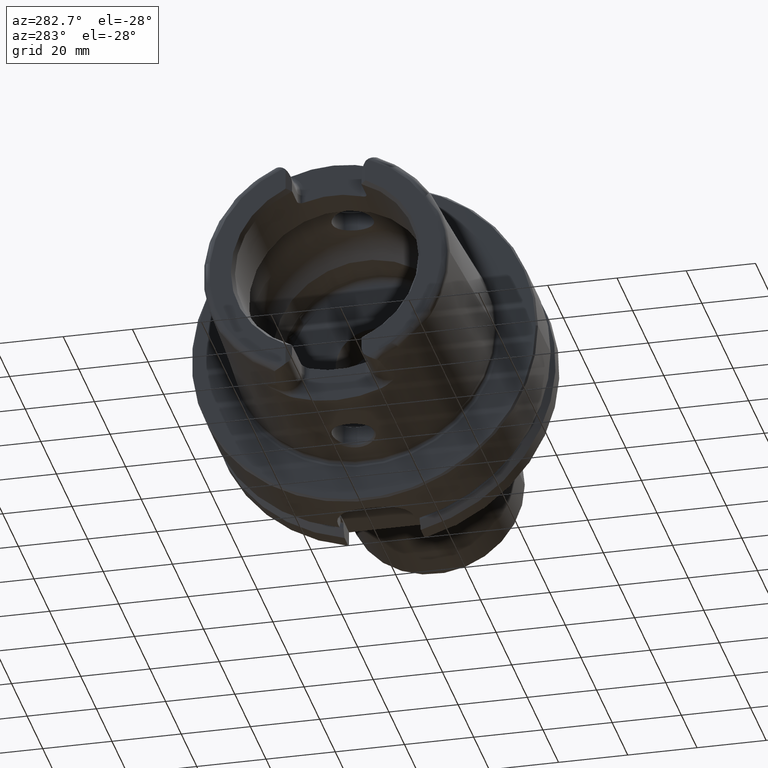
[diagram: clean part render]
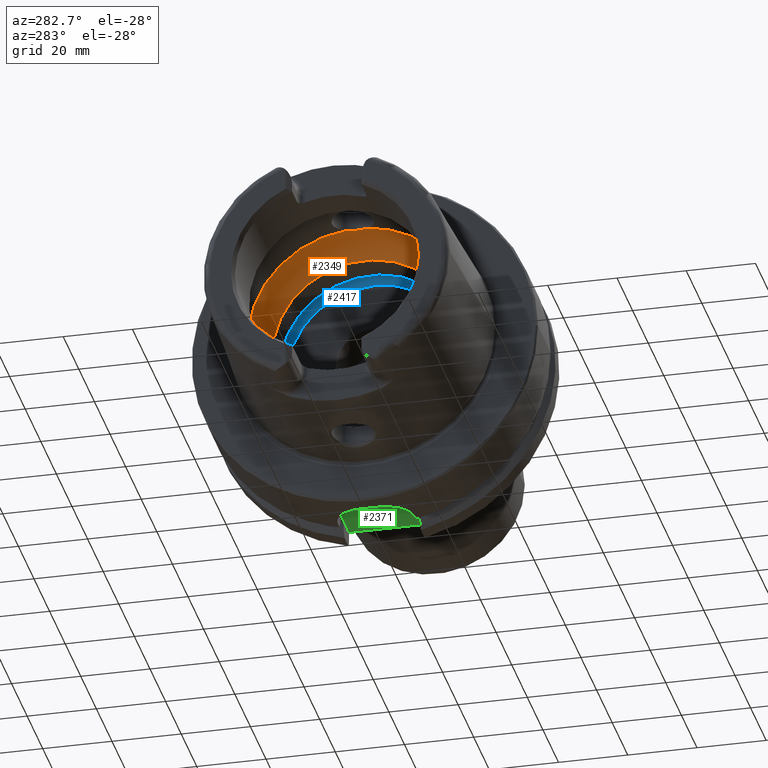
[diagram: same view with three faces highlighted in distinct colors, each labeled with its STEP entity id]
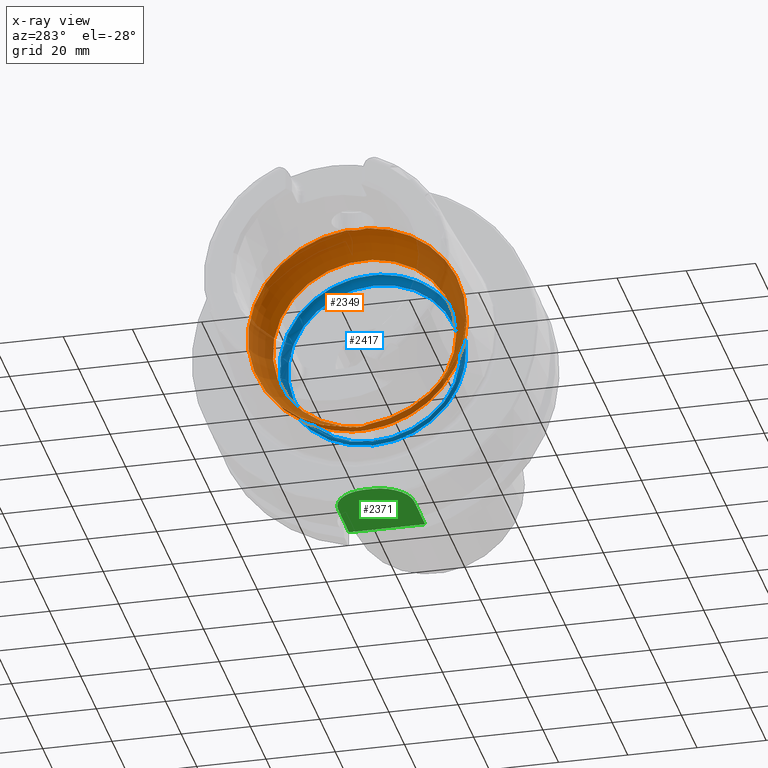
[diagram: x-ray of the same camera — body ghosted, the three highlighted faces saturated]
A machine part, auxiliary view with three faces highlighted in distinct colors.
The next image is the same camera in x-ray (body ghosted, the three faces saturated) — at least one of them is partly hidden behind the body in this view.
Their STEP definitions:

[orange] entity #2349 — the highlighted toroidal blend (fillet) surface has major radius 19.5 mm and minor (blend) radius 12 mm.
#34=TOROIDAL_SURFACE('',#2570,19.5,12.);
#155=CIRCLE('',#2565,31.5);
#158=CIRCLE('',#2568,31.5);
#159=CIRCLE('',#2569,31.5);
#160=CIRCLE('',#2571,26.5);
#161=CIRCLE('',#2572,26.5);
#162=CIRCLE('',#2573,12.);
#339=FACE_OUTER_BOUND('',#492,.T.);
#492=EDGE_LOOP('',(#1800,#1801,#1802,#1803,#1804,#1805,#1806,#1807,#1808,
#1809,#1810));
#628=B_SPLINE_CURVE_WITH_KNOTS('',3,(#4494,#4495,#4496,#4497,#4498,#4499,
#4500,#4501,#4502,#4503),.UNSPECIFIED.,.F.,.F.,(4,2,2,2,4),(-0.606113644645353,
-0.532141714710631,-0.407956541554012,-0.344441109025195,-0.303157612487306),
 .UNSPECIFIED.);
#630=B_SPLINE_CURVE_WITH_KNOTS('',3,(#4536,#4537,#4538,#4539,#4540,#4541,
#4542,#4543,#4544,#4545),.UNSPECIFIED.,.F.,.F.,(4,2,2,2,4),(-0.303157612487306,
-0.297161587155601,-0.247817233363509,-0.174446982686599,0.),
 .UNSPECIFIED.);
#633=B_SPLINE_CURVE_WITH_KNOTS('',3,(#4686,#4687,#4688,#4689,#4690,#4691,
#4692,#4693,#4694,#4695),.UNSPECIFIED.,.F.,.F.,(4,2,2,2,4),(-0.606113644645388,
-0.532141714710621,-0.407956541553997,-0.344441109025146,-0.303157612487227),
 .UNSPECIFIED.);
#635=B_SPLINE_CURVE_WITH_KNOTS('',3,(#4728,#4729,#4730,#4731,#4732,#4733,
#4734,#4735,#4736,#4737),.UNSPECIFIED.,.F.,.F.,(4,2,2,2,4),(-0.303157612487227,
-0.297161587155532,-0.247817233363497,-0.174446982686607,0.),
 .UNSPECIFIED.);
#1026=VERTEX_POINT('',#4491);
#1027=VERTEX_POINT('',#4493);
#1028=VERTEX_POINT('',#4504);
#1031=VERTEX_POINT('',#4684);
#1032=VERTEX_POINT('',#4685);
#1033=VERTEX_POINT('',#4696);
#1034=VERTEX_POINT('',#4740);
#1037=VERTEX_POINT('',#4750);
#1038=VERTEX_POINT('',#4751);
#1308=EDGE_CURVE('',#1027,#1026,#628,.T.);
#1310=EDGE_CURVE('',#1026,#1028,#630,.T.);
#1314=EDGE_CURVE('',#1031,#1032,#633,.T.);
#1316=EDGE_CURVE('',#1032,#1033,#635,.T.);
#1318=EDGE_CURVE('',#1034,#1031,#155,.T.);
#1322=EDGE_CURVE('',#1028,#1034,#158,.T.);
#1323=EDGE_CURVE('',#1033,#1027,#159,.T.);
#1324=EDGE_CURVE('',#1037,#1038,#160,.T.);
#1325=EDGE_CURVE('',#1038,#1037,#161,.T.);
#1326=EDGE_CURVE('',#1038,#1026,#162,.T.);
#1800=ORIENTED_EDGE('',*,*,#1324,.F.);
#1801=ORIENTED_EDGE('',*,*,#1325,.F.);
#1802=ORIENTED_EDGE('',*,*,#1326,.T.);
#1803=ORIENTED_EDGE('',*,*,#1310,.T.);
#1804=ORIENTED_EDGE('',*,*,#1322,.T.);
#1805=ORIENTED_EDGE('',*,*,#1318,.T.);
#1806=ORIENTED_EDGE('',*,*,#1314,.T.);
#1807=ORIENTED_EDGE('',*,*,#1316,.T.);
#1808=ORIENTED_EDGE('',*,*,#1323,.T.);
#1809=ORIENTED_EDGE('',*,*,#1308,.T.);
#1810=ORIENTED_EDGE('',*,*,#1326,.F.);
#2349=ADVANCED_FACE('',(#339),#34,.F.);
#2565=AXIS2_PLACEMENT_3D('',#4741,#3007,#3008);
#2568=AXIS2_PLACEMENT_3D('',#4747,#3014,#3015);
#2569=AXIS2_PLACEMENT_3D('',#4748,#3016,#3017);
#2570=AXIS2_PLACEMENT_3D('',#4749,#3018,#3019);
#2571=AXIS2_PLACEMENT_3D('',#4752,#3020,#3021);
#2572=AXIS2_PLACEMENT_3D('',#4753,#3022,#3023);
#2573=AXIS2_PLACEMENT_3D('',#4754,#3024,#3025);
#3007=DIRECTION('center_axis',(-1.,0.,0.));
#3008=DIRECTION('ref_axis',(0.,0.,1.));
#3014=DIRECTION('center_axis',(-1.,0.,0.));
#3015=DIRECTION('ref_axis',(0.,0.,1.));
#3016=DIRECTION('center_axis',(-1.,0.,0.));
#3017=DIRECTION('ref_axis',(0.,0.,1.));
#3018=DIRECTION('center_axis',(-1.,0.,0.));
#3019=DIRECTION('ref_axis',(0.,0.,1.));
#3020=DIRECTION('center_axis',(-1.,0.,0.));
#3021=DIRECTION('ref_axis',(0.,0.,1.));
#3022=DIRECTION('center_axis',(-1.,0.,0.));
#3023=DIRECTION('ref_axis',(0.,0.,1.));
#3024=DIRECTION('center_axis',(0.,1.,-1.22464679914735E-16));
#3025=DIRECTION('ref_axis',(0.,-1.22464679914735E-16,-1.));
#4491=CARTESIAN_POINT('',(-9.,8.53116613017712E-16,-31.4767398822284));
#4493=CARTESIAN_POINT('',(-9.74679434480896,2.89893607109041,-31.3663222207471));
#4494=CARTESIAN_POINT('Ctrl Pts',(-9.74679434480898,2.89893607109041,-31.3663222207471));
#4495=CARTESIAN_POINT('Ctrl Pts',(-9.62803941549252,2.68373847757038,-31.3862111979079));
#4496=CARTESIAN_POINT('Ctrl Pts',(-9.52250794022164,2.46123932380009,-31.4027818190648));
#4497=CARTESIAN_POINT('Ctrl Pts',(-9.27707880675082,1.84905941644996,-31.4398086116956));
#4498=CARTESIAN_POINT('Ctrl Pts',(-9.16318715371328,1.45014848778478,-31.4552463037839));
#4499=CARTESIAN_POINT('Ctrl Pts',(-9.05448554629564,0.83406948853474,-31.4697090180031));
#4500=CARTESIAN_POINT('Ctrl Pts',(-9.02875508102837,0.623753972628784,-31.4730355369691));
#4501=CARTESIAN_POINT('Ctrl Pts',(-9.00473516300901,0.275210595137741,-31.4761342948647));
#4502=CARTESIAN_POINT('Ctrl Pts',(-9.,0.13762179988616,-31.4767398822284));
#4503=CARTESIAN_POINT('Ctrl Pts',(-9.,9.71445146547012E-16,-31.4767398822284));
#4504=CARTESIAN_POINT('',(-9.74679434480896,-2.89893607109041,-31.3663222207471));
#4536=CARTESIAN_POINT('Ctrl Pts',(-9.,9.83483832277069E-16,-31.4767398822284));
#4537=CARTESIAN_POINT('Ctrl Pts',(-9.,-0.0199882245331354,-31.4767398822284));
#4538=CARTESIAN_POINT('Ctrl Pts',(-9.00009988237686,-0.0399771452902417,
-31.4767270717783));
#4539=CARTESIAN_POINT('Ctrl Pts',(-9.00194380057016,-0.224464346212316,
-31.4764905359115));
#4540=CARTESIAN_POINT('Ctrl Pts',(-9.01035297969853,-0.388827878343727,
-31.4754151841588));
#4541=CARTESIAN_POINT('Ctrl Pts',(-9.0480310904853,-0.796171644009328,-31.4705320701686));
#4542=CARTESIAN_POINT('Ctrl Pts',(-9.08543037238412,-1.03809779370842,-31.4656619259797));
#4543=CARTESIAN_POINT('Ctrl Pts',(-9.26119500081336,-1.84501079512327,-31.441850680052));
#4544=CARTESIAN_POINT('Ctrl Pts',(-9.4667592962906,-2.39148034786879,-31.4132222586341));
#4545=CARTESIAN_POINT('Ctrl Pts',(-9.74679434480898,-2.89893607109041,-31.3663222207471));
#4684=CARTESIAN_POINT('',(-9.74679434480896,-2.89893607109042,31.3663222207471));
#4685=CARTESIAN_POINT('',(-8.99999999999999,7.8372767397864E-16,31.4767398822284));
#4686=CARTESIAN_POINT('Ctrl Pts',(-9.74679434480898,-2.89893607109042,31.3663222207471));
#4687=CARTESIAN_POINT('Ctrl Pts',(-9.62803941549257,-2.6837384775705,31.3862111979079));
#4688=CARTESIAN_POINT('Ctrl Pts',(-9.52250794022172,-2.46123932380032,31.4027818190648));
#4689=CARTESIAN_POINT('Ctrl Pts',(-9.27707880675083,-1.84905941645004,31.4398086116956));
#4690=CARTESIAN_POINT('Ctrl Pts',(-9.16318715371328,-1.45014848778485,31.4552463037839));
#4691=CARTESIAN_POINT('Ctrl Pts',(-9.05448554629561,-0.834069488534672,
31.4697090180031));
#4692=CARTESIAN_POINT('Ctrl Pts',(-9.02875508102836,-0.623753972628598,
31.4730355369691));
#4693=CARTESIAN_POINT('Ctrl Pts',(-9.00473516300902,-0.275210595137865,
31.4761342948647));
#4694=CARTESIAN_POINT('Ctrl Pts',(-8.99999999999999,-0.137621799886392,
31.4767398822284));
#4695=CARTESIAN_POINT('Ctrl Pts',(-8.99999999999999,9.0205620750794E-16,
31.4767398822284));
#4696=CARTESIAN_POINT('',(-9.74679434480896,2.89893607109042,31.3663222207471));
#4728=CARTESIAN_POINT('Ctrl Pts',(-8.99999999999999,8.7920239009422E-16,
31.4767398822284));
#4729=CARTESIAN_POINT('Ctrl Pts',(-8.99999999999999,0.0199882245331231,
31.4767398822284));
#4730=CARTESIAN_POINT('Ctrl Pts',(-9.00009988237684,0.0399771452902225,
31.4767270717783));
#4731=CARTESIAN_POINT('Ctrl Pts',(-9.00194380057014,0.224464346212396,31.4764905359115));
#4732=CARTESIAN_POINT('Ctrl Pts',(-9.01035297969852,0.388827878343765,31.4754151841588));
#4733=CARTESIAN_POINT('Ctrl Pts',(-9.0480310904853,0.79617164400948,31.4705320701686));
#4734=CARTESIAN_POINT('Ctrl Pts',(-9.08543037238414,1.03809779370849,31.4656619259797));
#4735=CARTESIAN_POINT('Ctrl Pts',(-9.26119500081334,1.84501079512323,31.441850680052));
#4736=CARTESIAN_POINT('Ctrl Pts',(-9.46675929629059,2.39148034786878,31.4132222586341));
#4737=CARTESIAN_POINT('Ctrl Pts',(-9.74679434480898,2.89893607109043,31.3663222207471));
#4740=CARTESIAN_POINT('',(-9.74679434480896,-31.5,3.85763741731416E-15));
#4741=CARTESIAN_POINT('Origin',(-9.74679434480896,0.,0.));
#4747=CARTESIAN_POINT('Origin',(-9.74679434480896,0.,0.));
#4748=CARTESIAN_POINT('Origin',(-9.74679434480896,0.,0.));
#4749=CARTESIAN_POINT('Origin',(-9.74679434480896,0.,0.));
#4750=CARTESIAN_POINT('',(0.,-26.5,3.24531401774049E-15));
#4751=CARTESIAN_POINT('',(0.,-3.24531401774049E-15,-26.5));
#4752=CARTESIAN_POINT('Origin',(0.,0.,0.));
#4753=CARTESIAN_POINT('Origin',(0.,0.,0.));
#4754=CARTESIAN_POINT('Origin',(-9.74679434480896,-2.38806125833734E-15,
-19.5));

[blue] entity #2417 — the highlighted toroidal blend (fillet) surface has major radius 24.9 mm and minor (blend) radius 2 mm.
#52=TOROIDAL_SURFACE('',#2705,24.9,2.);
#226=CIRCLE('',#2704,24.9);
#227=CIRCLE('',#2706,2.);
#228=CIRCLE('',#2707,26.5);
#229=CIRCLE('',#2708,26.5);
#407=FACE_OUTER_BOUND('',#567,.T.);
#567=EDGE_LOOP('',(#2178,#2179,#2180,#2181,#2182));
#1146=VERTEX_POINT('',#5412);
#1147=VERTEX_POINT('',#5415);
#1148=VERTEX_POINT('',#5417);
#1497=EDGE_CURVE('',#1146,#1146,#226,.T.);
#1498=EDGE_CURVE('',#1146,#1147,#227,.T.);
#1499=EDGE_CURVE('',#1147,#1148,#228,.T.);
#1500=EDGE_CURVE('',#1148,#1147,#229,.T.);
#2178=ORIENTED_EDGE('',*,*,#1497,.F.);
#2179=ORIENTED_EDGE('',*,*,#1498,.T.);
#2180=ORIENTED_EDGE('',*,*,#1499,.T.);
#2181=ORIENTED_EDGE('',*,*,#1500,.T.);
#2182=ORIENTED_EDGE('',*,*,#1498,.F.);
#2417=ADVANCED_FACE('',(#407),#52,.F.);
#2704=AXIS2_PLACEMENT_3D('',#5413,#3352,#3353);
#2705=AXIS2_PLACEMENT_3D('',#5414,#3354,#3355);
#2706=AXIS2_PLACEMENT_3D('',#5416,#3356,#3357);
#2707=AXIS2_PLACEMENT_3D('',#5418,#3358,#3359);
#2708=AXIS2_PLACEMENT_3D('',#5419,#3360,#3361);
#3352=DIRECTION('center_axis',(-1.,0.,0.));
#3353=DIRECTION('ref_axis',(0.,0.,1.));
#3354=DIRECTION('center_axis',(-1.,0.,0.));
#3355=DIRECTION('ref_axis',(0.,0.,1.));
#3356=DIRECTION('center_axis',(0.,1.,-1.22464679914735E-16));
#3357=DIRECTION('ref_axis',(0.,-1.22464679914735E-16,-1.));
#3358=DIRECTION('center_axis',(-1.,0.,0.));
#3359=DIRECTION('ref_axis',(0.,0.,1.));
#3360=DIRECTION('center_axis',(-1.,0.,0.));
#3361=DIRECTION('ref_axis',(0.,0.,1.));
#5412=CARTESIAN_POINT('',(12.5,-3.04937052987691E-15,-24.9));
#5413=CARTESIAN_POINT('Origin',(12.5,0.,0.));
#5414=CARTESIAN_POINT('Origin',(10.5,0.,0.));
#5415=CARTESIAN_POINT('',(9.3,-3.24531401774049E-15,-26.5));
#5416=CARTESIAN_POINT('Origin',(10.5,-3.04937052987691E-15,-24.9));
#5417=CARTESIAN_POINT('',(9.3,-26.5,3.24531401774049E-15));
#5418=CARTESIAN_POINT('Origin',(9.3,0.,0.));
#5419=CARTESIAN_POINT('Origin',(9.3,0.,0.));

[green] entity #2371 — the highlighted planar face has unit normal (0, 0, 1).
#183=CIRCLE('',#2612,10.);
#184=CIRCLE('',#2615,10.);
#270=PLANE('',#2617);
#361=FACE_OUTER_BOUND('',#517,.T.);
#517=EDGE_LOOP('',(#1950,#1951,#1952,#1953,#1954,#1955));
#738=LINE('',#5075,#858);
#750=LINE('',#5171,#870);
#753=LINE('',#5178,#873);
#754=LINE('',#5180,#874);
#858=VECTOR('',#3125,10.);
#870=VECTOR('',#3143,10.);
#873=VECTOR('',#3152,10.);
#874=VECTOR('',#3155,10.);
#1091=VERTEX_POINT('',#5072);
#1092=VERTEX_POINT('',#5074);
#1100=VERTEX_POINT('',#5115);
#1101=VERTEX_POINT('',#5117);
#1111=VERTEX_POINT('',#5170);
#1112=VERTEX_POINT('',#5174);
#1394=EDGE_CURVE('',#1091,#1092,#738,.T.);
#1405=EDGE_CURVE('',#1100,#1101,#183,.T.);
#1416=EDGE_CURVE('',#1101,#1111,#750,.T.);
#1418=EDGE_CURVE('',#1092,#1112,#184,.T.);
#1420=EDGE_CURVE('',#1112,#1100,#753,.T.);
#1421=EDGE_CURVE('',#1111,#1091,#754,.T.);
#1950=ORIENTED_EDGE('',*,*,#1420,.F.);
#1951=ORIENTED_EDGE('',*,*,#1418,.F.);
#1952=ORIENTED_EDGE('',*,*,#1394,.F.);
#1953=ORIENTED_EDGE('',*,*,#1421,.F.);
#1954=ORIENTED_EDGE('',*,*,#1416,.F.);
#1955=ORIENTED_EDGE('',*,*,#1405,.F.);
#2371=ADVANCED_FACE('',(#361),#270,.F.);
#2612=AXIS2_PLACEMENT_3D('',#5118,#3134,#3135);
#2615=AXIS2_PLACEMENT_3D('',#5175,#3147,#3148);
#2617=AXIS2_PLACEMENT_3D('',#5179,#3153,#3154);
#3125=DIRECTION('',(-1.,-1.58603289232165E-16,0.));
#3134=DIRECTION('center_axis',(0.,0.,1.));
#3135=DIRECTION('ref_axis',(-1.,-2.4980018054066E-16,0.));
#3143=DIRECTION('',(1.,1.58603289232165E-16,0.));
#3147=DIRECTION('center_axis',(0.,0.,1.));
#3148=DIRECTION('ref_axis',(-2.22044604925031E-16,1.,0.));
#3152=DIRECTION('',(0.,-1.,0.));
#3153=DIRECTION('center_axis',(0.,0.,1.));
#3154=DIRECTION('ref_axis',(1.,0.,0.));
#3155=DIRECTION('',(0.,1.,0.));
#5072=CARTESIAN_POINT('',(29.,11.,-44.));
#5074=CARTESIAN_POINT('',(15.,11.,-44.));
#5075=CARTESIAN_POINT('',(29.,11.,-44.));
#5115=CARTESIAN_POINT('',(4.99999999999999,-1.00000000000001,-44.));
#5117=CARTESIAN_POINT('',(15.,-11.,-44.));
#5118=CARTESIAN_POINT('Origin',(15.,-1.,-44.));
#5170=CARTESIAN_POINT('',(29.,-11.,-44.));
#5171=CARTESIAN_POINT('',(15.,-11.,-44.));
#5174=CARTESIAN_POINT('',(4.99999999999999,0.999999999999997,-44.));
#5175=CARTESIAN_POINT('Origin',(15.,1.,-44.));
#5178=CARTESIAN_POINT('',(4.99999999999999,0.999999999999997,-44.));
#5179=CARTESIAN_POINT('Origin',(17.,-1.11022302462516E-15,-44.));
#5180=CARTESIAN_POINT('',(29.,-5.55111512312578E-16,-44.));